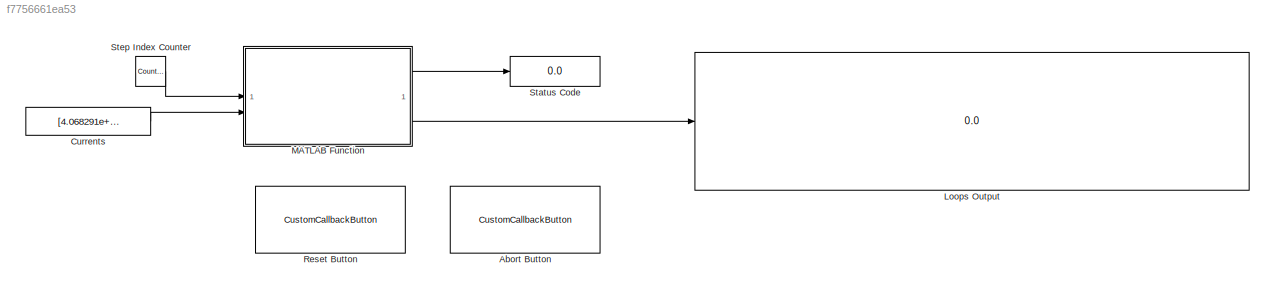
MODEL slx_f7756661ea53
KIND model
CONFIG AbsTol = auto
CONFIG EnableMultiTasking = off
CONFIG FixedStep = 1
CONFIG MaxStep = auto
CONFIG MinStep = auto
CONFIG RelTol = 1e-3
CONFIG SampleTimeConstraint = Unconstrained
CONFIG SolverName = FixedStepDiscrete
CONFIG StartTime = 0.0
CONFIG StopTime = 200.0
BLOCK [CustomCallbackButton] Abort Button
  Configuration = {"components":[{"name":"BackgroundImageComponent","settings":{"image":{"size":[0,0],"src":"default","srcOrientation":"Right"},"position":[0,0,1,1]}},{"name":"ButtonStateComponent","settings":{"buttonType":"momentary","clickFcn":"global signal_stop_fusiontwin_wrapper;\nsignal_stop_fusiontwin_wrapper = true;\n\n            \n           ","onValue":1,"position":[0,0,1,1],"pressDelay":"500","pressFcn"...<+2174ch>
  CustomBackgroundColor = {"color":[0.9568627451,0.9568627451,0.9568627451],"show":true}
BLOCK [Constant] Currents
  Value = [4.068291e+03, -3.282641e+03, -6.635891e+04, -1.695230e+05, -3.443223e+04, 1.140770e+05, 1.218360e+05, -1.560090e+05, -2.193246e+05, 1.248960e+05, -4.316320e+04, -6.181721e+04, -1.726810e+05, -4.876090e+04, 9.357561e+04, 5.540891e+04, -1.162780e+05, -1.989435e+05, 1.530210e+05, -4.344770e+04]
BLOCK [Display] Loops Output
  Decimation = 1
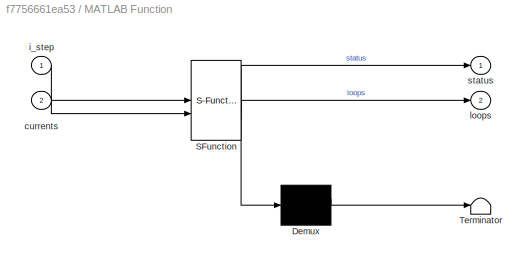
BLOCK [SubSystem] MATLAB Function
  ErrorFcn = Stateflow.Translate.translate
  PermitHierarchicalResolution = ExplicitOnly
  SFBlockType = MATLAB Function
  TreatAsAtomicUnit = on
BLOCK [Demux] MATLAB Function/ Demux 
  Outputs = 1
BLOCK [S-Function] MATLAB Function/ SFunction 
  EnableBusSupport = on
  FunctionName = sf_sfun
  PortCounts = [2 3]
  SFcnIsStateOwnerBlock = off
  SFunctionDeploymentMode = off
  Tag = Stateflow S-Function 2
BLOCK [Terminator] MATLAB Function/ Terminator 
BLOCK [Inport] MATLAB Function/currents
  Port = 2
BLOCK [Inport] MATLAB Function/i_step
BLOCK [Outport] MATLAB Function/loops
  Port = 2
BLOCK [Outport] MATLAB Function/status
BLOCK [CustomCallbackButton] Reset Button
  Configuration = {"components":[{"name":"BackgroundImageComponent","settings":{"image":{"size":[0,0],"src":"default","srcOrientation":"Right"},"position":[0,0,1,1]}},{"name":"ButtonStateComponent","settings":{"buttonType":"momentary","clickFcn":"clear fusiontwin_wrapper;\nset_param(scheme_name_fusiontwin_wrapper, 'SimulationCommand', 'start');","onValue":1,"position":[0,0,1,1],"pressDelay":"500","pressFcn":"","rep...<+2200ch>
  CustomBackgroundColor = {"color":[0.9568627451,0.9568627451,0.9568627451],"show":true}
BLOCK [Display] Status Code
  Decimation = 1
BLOCK [Reference] Step Index Counter  REF=simulink/Sources/Counter
Free-Running
  SourceBlock = simulink/Sources/Counter\nFree-Running
  SourceType = Counter Free-Running
LINE Currents:1 -> MATLAB Function:2
LINE MATLAB Function:1 -> Status Code:1
LINE MATLAB Function:2 -> Loops Output:1
LINE Step Index Counter:1 -> MATLAB Function:1
CHART MATLAB Function states=1 transitions=1
  STATE_LABEL 'eML_blk_kernel()'
  STATE_LABEL "SCRIPT:\nfunction [status, loops] = fusionTwinAPIWrapper(i_step, currents)\n    status = int8(0); loops = zeros(44,1);\n    coder.extrinsic('fusiontwin_wrapper');\n    [status, loops] = fusiontwin_wrapper(i_step, currents);\nend"
CHART  states=0 transitions=0
